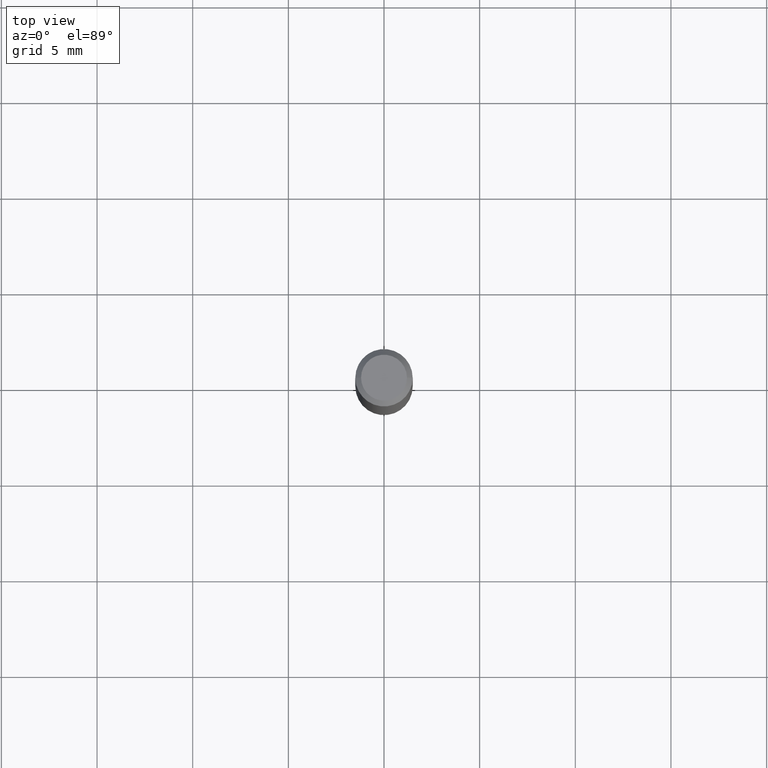
[diagram: clean part render]
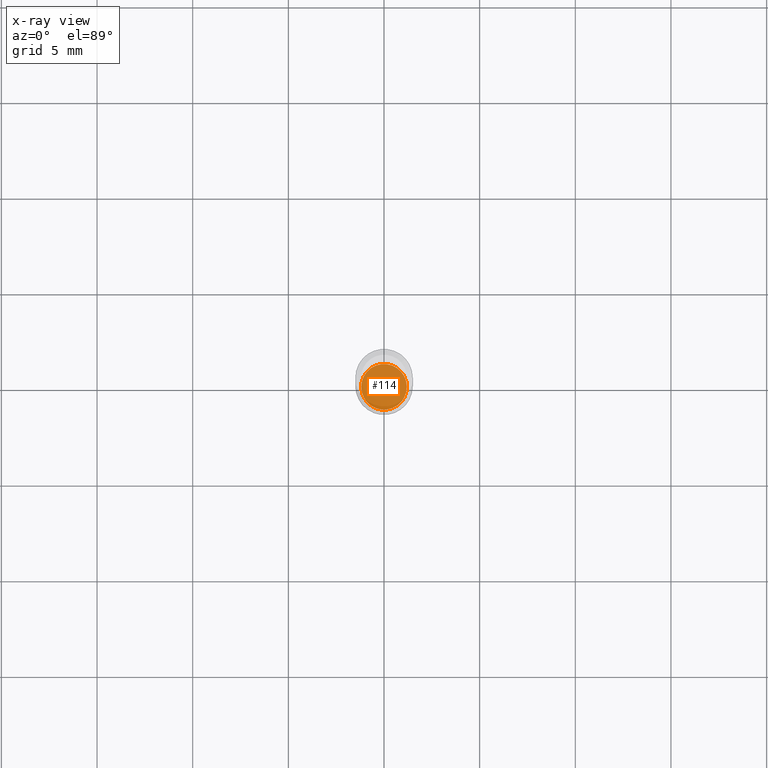
[diagram: x-ray — body ghosted, one internal face saturated and labeled with its STEP entity id]
A machine part, top view, then the same camera in x-ray: the body is ghosted and one INTERNAL B-rep face — a face not visible from any outside direction — is saturated and labeled: STEP entity #114.
In plain terms, the highlighted planar face has unit normal (-0, 0, 1).
Its self-contained STEP definition (entity closure, byte-faithful):
#1 = CARTESIAN_POINT ( 'NONE',  ( -0.04694999999999999174, -3.485177283750344594E-15, -1.094500000000000028 ) ) ;
#64 = EDGE_CURVE ( 'NONE', #315, #484, #274, .T. ) ;
#72 = AXIS2_PLACEMENT_3D ( 'NONE', #482, #365, #287 ) ;
#91 = FACE_OUTER_BOUND ( 'NONE', #256, .T. ) ;
#114 = ADVANCED_FACE ( 'NONE', ( #91 ), #402, .F. ) ;
#128 = ORIENTED_EDGE ( 'NONE', *, *, #328, .F. ) ;
#146 = CIRCLE ( 'NONE', #72, 0.04694999999999999174 ) ;
#149 = CARTESIAN_POINT ( 'NONE',  ( 0.04694999999999999174, -4.149276423081192976E-15, -1.094500000000000028 ) ) ;
#196 = AXIS2_PLACEMENT_3D ( 'NONE', #398, #358, #323 ) ;
#235 = AXIS2_PLACEMENT_3D ( 'NONE', #326, #483, #293 ) ;
#256 = EDGE_LOOP ( 'NONE', ( #275, #128 ) ) ;
#274 = CIRCLE ( 'NONE', #196, 0.04694999999999999174 ) ;
#275 = ORIENTED_EDGE ( 'NONE', *, *, #64, .F. ) ;
#287 = DIRECTION ( 'NONE',  ( 1.000000000000000000, -6.982962677686264344E-15, 0.000000000000000000 ) ) ;
#293 = DIRECTION ( 'NONE',  ( 1.000000000000000000, -6.982962677686265922E-15, 4.876176775795935793E-29 ) ) ;
#315 = VERTEX_POINT ( 'NONE', #149 ) ;
#323 = DIRECTION ( 'NONE',  ( 1.000000000000000000, -6.982962677686264344E-15, 0.000000000000000000 ) ) ;
#326 = CARTESIAN_POINT ( 'NONE',  ( 4.530180386399367457E-30, -7.005673001684947290E-15, -1.094500000000000028 ) ) ;
#328 = EDGE_CURVE ( 'NONE', #484, #315, #146, .T. ) ;
#358 = DIRECTION ( 'NONE',  ( -2.445468806185136597E-29, 3.491481338843145583E-15, 1.000000000000000000 ) ) ;
#365 = DIRECTION ( 'NONE',  ( -2.445468806185136597E-29, 3.491481338843145583E-15, 1.000000000000000000 ) ) ;
#398 = CARTESIAN_POINT ( 'NONE',  ( 2.676565608369632355E-29, -3.821426325363822773E-15, -1.094500000000000028 ) ) ;
#402 = PLANE ( 'NONE',  #235 ) ;
#482 = CARTESIAN_POINT ( 'NONE',  ( 2.676565608369632355E-29, -3.821426325363822773E-15, -1.094500000000000028 ) ) ;
#483 = DIRECTION ( 'NONE',  ( -2.438088387897960049E-29, 3.491481338843145188E-15, 1.000000000000000000 ) ) ;
#484 = VERTEX_POINT ( 'NONE', #1 ) ;